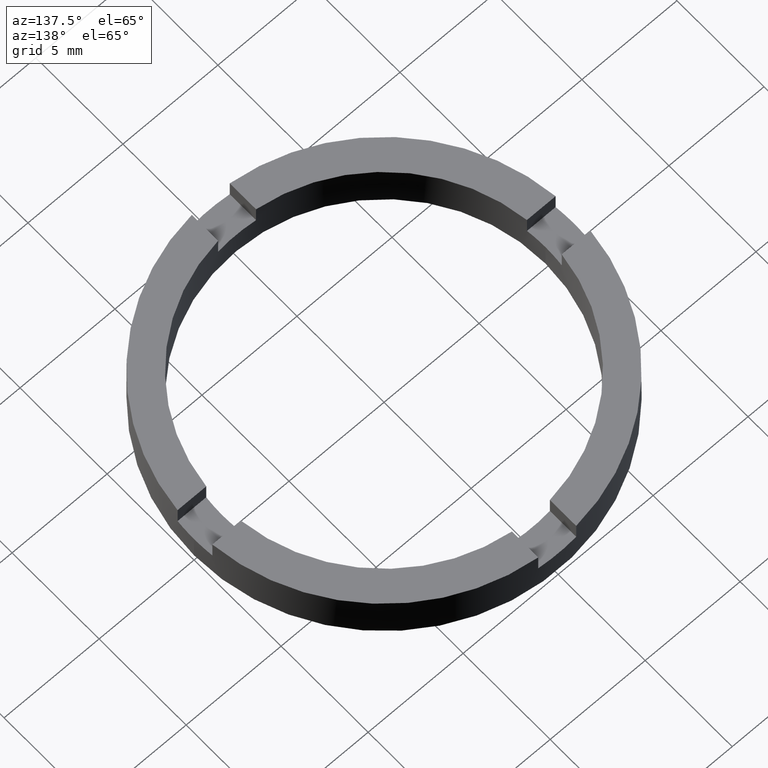
[diagram: clean part render]
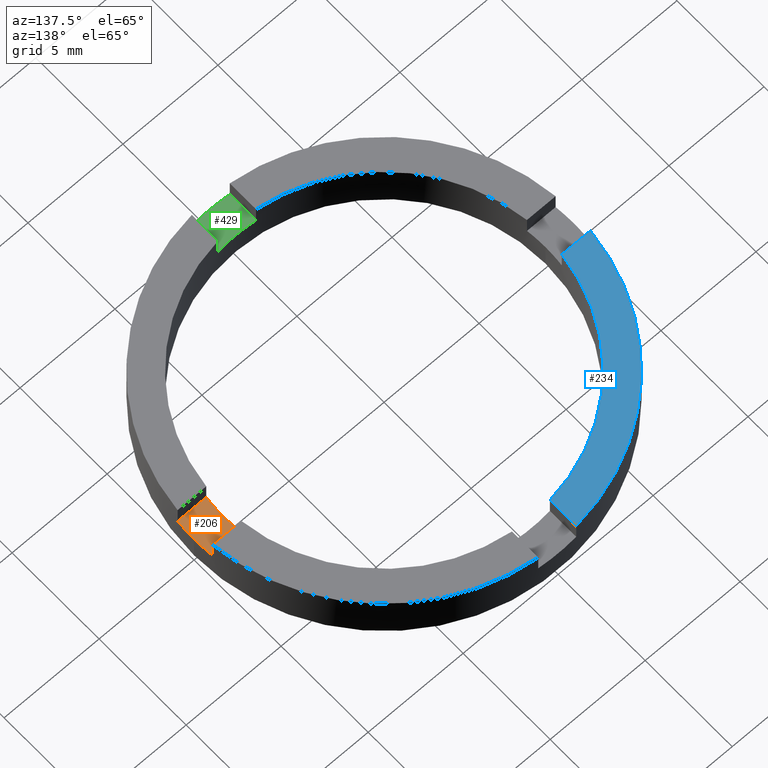
[diagram: same view with three faces highlighted in distinct colors, each labeled with its STEP entity id]
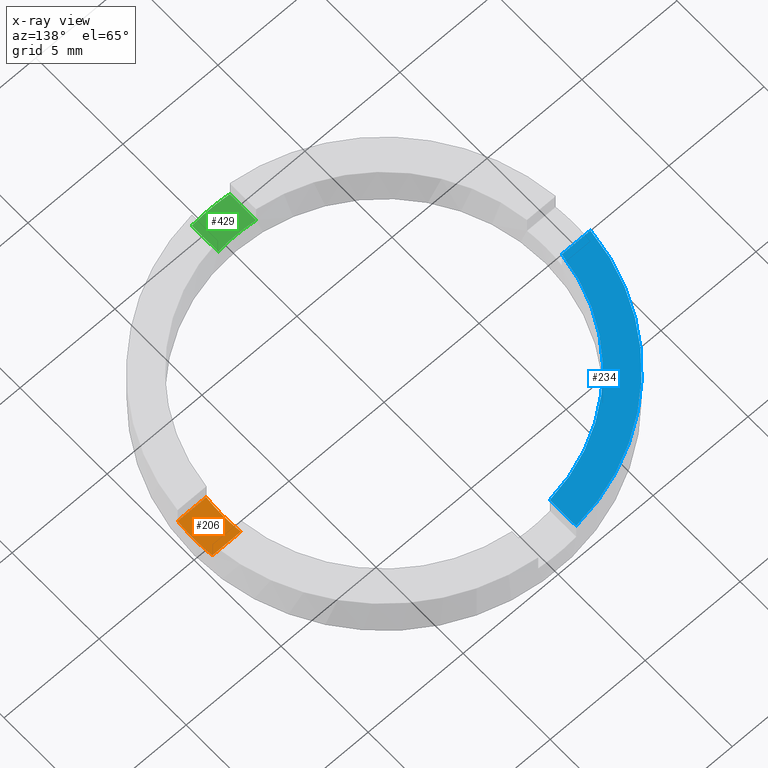
[diagram: x-ray of the same camera — body ghosted, the three highlighted faces saturated]
A machine part, auxiliary view with three faces highlighted in distinct colors.
The next image is the same camera in x-ray (body ghosted, the three faces saturated) — at least one of them is partly hidden behind the body in this view.
Their STEP definitions:

[orange] entity #206 — the highlighted planar face has unit normal (-0, 0, 1).
#17 = VERTEX_POINT ( 'NONE', #593 ) ;
#19 = ORIENTED_EDGE ( 'NONE', *, *, #385, .T. ) ;
#36 = DIRECTION ( 'NONE',  ( -0.000000000000000000, 0.000000000000000000, 1.000000000000000000 ) ) ;
#47 = DIRECTION ( 'NONE',  ( -0.000000000000000000, 0.000000000000000000, 1.000000000000000000 ) ) ;
#53 = AXIS2_PLACEMENT_3D ( 'NONE', #104, #36, #437 ) ;
#67 = CARTESIAN_POINT ( 'NONE',  ( 0.000000000000000000, 0.000000000000000000, 1.500000000000000000 ) ) ;
#79 = EDGE_CURVE ( 'NONE', #642, #17, #690, .T. ) ;
#86 = CARTESIAN_POINT ( 'NONE',  ( 10.00000000000000000, 1.224646799147353256E-15, 1.500000000000000000 ) ) ;
#100 = EDGE_CURVE ( 'NONE', #621, #387, #384, .T. ) ;
#101 = CARTESIAN_POINT ( 'NONE',  ( 8.440971508067070417, 0.9999999999999672484, 1.500000000000000000 ) ) ;
#104 = CARTESIAN_POINT ( 'NONE',  ( 0.000000000000000000, 0.000000000000000000, 1.500000000000000000 ) ) ;
#125 = CARTESIAN_POINT ( 'NONE',  ( 3.751339516799841397E-15, 0.9999999999999988898, 1.500000000000000000 ) ) ;
#127 = FACE_OUTER_BOUND ( 'NONE', #132, .T. ) ;
#132 = EDGE_LOOP ( 'NONE', ( #520, #639, #523, #265, #747, #19 ) ) ;
#168 = CIRCLE ( 'NONE', #561, 8.500000000000000000 ) ;
#206 = ADVANCED_FACE ( 'NONE', ( #127 ), #650, .T. ) ;
#227 = AXIS2_PLACEMENT_3D ( 'NONE', #67, #47, #276 ) ;
#255 = CARTESIAN_POINT ( 'NONE',  ( 8.440971508067063311, -1.000000000000032641, 1.500000000000000000 ) ) ;
#263 = VERTEX_POINT ( 'NONE', #86 ) ;
#265 = ORIENTED_EDGE ( 'NONE', *, *, #79, .T. ) ;
#267 = DIRECTION ( 'NONE',  ( 1.000000000000000000, -1.509903313490213211E-14, 0.000000000000000000 ) ) ;
#276 = DIRECTION ( 'NONE',  ( 1.000000000000000000, 0.000000000000000000, 0.000000000000000000 ) ) ;
#349 = EDGE_CURVE ( 'NONE', #742, #642, #414, .T. ) ;
#362 = DIRECTION ( 'NONE',  ( 1.000000000000000000, -3.729655473350134464E-15, 0.000000000000000000 ) ) ;
#365 = CARTESIAN_POINT ( 'NONE',  ( 9.949874371066202983, 0.9999999999999615863, 1.500000000000000000 ) ) ;
#384 = LINE ( 'NONE', #125, #673 ) ;
#385 = EDGE_CURVE ( 'NONE', #263, #387, #409, .T. ) ;
#387 = VERTEX_POINT ( 'NONE', #365 ) ;
#409 = CIRCLE ( 'NONE', #227, 10.00000000000000000 ) ;
#414 = CIRCLE ( 'NONE', #739, 8.500000000000000000 ) ;
#415 = CARTESIAN_POINT ( 'NONE',  ( 0.000000000000000000, 0.000000000000000000, 1.500000000000000000 ) ) ;
#437 = DIRECTION ( 'NONE',  ( 1.000000000000000000, 0.000000000000000000, 0.000000000000000000 ) ) ;
#448 = CIRCLE ( 'NONE', #555, 10.00000000000000000 ) ;
#484 = DIRECTION ( 'NONE',  ( 1.000000000000000000, -3.751339516799845342E-15, 0.000000000000000000 ) ) ;
#499 = DIRECTION ( 'NONE',  ( 1.000000000000000000, 0.000000000000000000, 0.000000000000000000 ) ) ;
#500 = EDGE_CURVE ( 'NONE', #621, #742, #168, .T. ) ;
#502 = DIRECTION ( 'NONE',  ( -0.000000000000000000, 0.000000000000000000, 1.000000000000000000 ) ) ;
#509 = DIRECTION ( 'NONE',  ( 1.000000000000000000, 0.000000000000000000, 0.000000000000000000 ) ) ;
#520 = ORIENTED_EDGE ( 'NONE', *, *, #100, .F. ) ;
#523 = ORIENTED_EDGE ( 'NONE', *, *, #349, .T. ) ;
#526 = DIRECTION ( 'NONE',  ( 0.000000000000000000, -0.000000000000000000, -1.000000000000000000 ) ) ;
#555 = AXIS2_PLACEMENT_3D ( 'NONE', #415, #502, #499 ) ;
#561 = AXIS2_PLACEMENT_3D ( 'NONE', #615, #766, #267 ) ;
#593 = CARTESIAN_POINT ( 'NONE',  ( 9.949874371066195877, -1.000000000000038192, 1.500000000000000000 ) ) ;
#597 = CARTESIAN_POINT ( 'NONE',  ( 8.500000000000000000, 1.040949779275250140E-15, 1.500000000000000000 ) ) ;
#615 = CARTESIAN_POINT ( 'NONE',  ( 0.000000000000000000, 0.000000000000000000, 1.500000000000000000 ) ) ;
#621 = VERTEX_POINT ( 'NONE', #101 ) ;
#639 = ORIENTED_EDGE ( 'NONE', *, *, #500, .T. ) ;
#642 = VERTEX_POINT ( 'NONE', #255 ) ;
#650 = PLANE ( 'NONE',  #53 ) ;
#652 = EDGE_CURVE ( 'NONE', #17, #263, #448, .T. ) ;
#673 = VECTOR ( 'NONE', #484, 1000.000000000000000 ) ;
#690 = LINE ( 'NONE', #727, #693 ) ;
#693 = VECTOR ( 'NONE', #362, 1000.000000000000000 ) ;
#695 = CARTESIAN_POINT ( 'NONE',  ( 0.000000000000000000, 0.000000000000000000, 1.500000000000000000 ) ) ;
#727 = CARTESIAN_POINT ( 'NONE',  ( -3.729655473350139197E-15, -1.000000000000001110, 1.500000000000000000 ) ) ;
#739 = AXIS2_PLACEMENT_3D ( 'NONE', #695, #526, #509 ) ;
#742 = VERTEX_POINT ( 'NONE', #597 ) ;
#747 = ORIENTED_EDGE ( 'NONE', *, *, #652, .T. ) ;
#766 = DIRECTION ( 'NONE',  ( 0.000000000000000000, -0.000000000000000000, -1.000000000000000000 ) ) ;

[blue] entity #234 — the highlighted planar face has unit normal (0, 0, 1).
#13 = VERTEX_POINT ( 'NONE', #334 ) ;
#25 = EDGE_LOOP ( 'NONE', ( #182, #714, #525, #529 ) ) ;
#35 = AXIS2_PLACEMENT_3D ( 'NONE', #664, #601, #311 ) ;
#38 = CARTESIAN_POINT ( 'NONE',  ( -8.440971508067063311, 1.000000000000030642, 2.500000000000000000 ) ) ;
#118 = VECTOR ( 'NONE', #324, 1000.000000000000000 ) ;
#124 = CIRCLE ( 'NONE', #441, 8.500000000000000000 ) ;
#133 = DIRECTION ( 'NONE',  ( 1.000000000000000000, 0.000000000000000000, 0.000000000000000000 ) ) ;
#155 = FACE_OUTER_BOUND ( 'NONE', #25, .T. ) ;
#180 = LINE ( 'NONE', #723, #694 ) ;
#182 = ORIENTED_EDGE ( 'NONE', *, *, #330, .F. ) ;
#191 = PLANE ( 'NONE',  #35 ) ;
#231 = CARTESIAN_POINT ( 'NONE',  ( -9.949874371066195877, 1.000000000000036193, 2.500000000000000000 ) ) ;
#234 = ADVANCED_FACE ( 'NONE', ( #155 ), #191, .T. ) ;
#268 = VERTEX_POINT ( 'NONE', #231 ) ;
#293 = EDGE_CURVE ( 'NONE', #13, #632, #396, .T. ) ;
#311 = DIRECTION ( 'NONE',  ( 1.000000000000000000, 0.000000000000000000, -0.000000000000000000 ) ) ;
#318 = CARTESIAN_POINT ( 'NONE',  ( 0.000000000000000000, 0.000000000000000000, 2.500000000000000000 ) ) ;
#324 = DIRECTION ( 'NONE',  ( 0.000000000000000000, 1.000000000000000000, -0.000000000000000000 ) ) ;
#327 = DIRECTION ( 'NONE',  ( 1.000000000000000000, -3.751339516799845342E-15, 0.000000000000000000 ) ) ;
#330 = EDGE_CURVE ( 'NONE', #13, #536, #124, .T. ) ;
#334 = CARTESIAN_POINT ( 'NONE',  ( -0.9999999999999986677, 8.440971508067066864, 2.500000000000000000 ) ) ;
#350 = CARTESIAN_POINT ( 'NONE',  ( 0.000000000000000000, 0.000000000000000000, 2.500000000000000000 ) ) ;
#353 = DIRECTION ( 'NONE',  ( 0.000000000000000000, 0.000000000000000000, 1.000000000000000000 ) ) ;
#357 = DIRECTION ( 'NONE',  ( 0.000000000000000000, 0.000000000000000000, 1.000000000000000000 ) ) ;
#376 = CARTESIAN_POINT ( 'NONE',  ( -0.9999999999999986677, 0.000000000000000000, 2.500000000000000000 ) ) ;
#396 = LINE ( 'NONE', #376, #118 ) ;
#441 = AXIS2_PLACEMENT_3D ( 'NONE', #350, #353, #444 ) ;
#444 = DIRECTION ( 'NONE',  ( 1.000000000000000000, 0.000000000000000000, 0.000000000000000000 ) ) ;
#449 = CIRCLE ( 'NONE', #582, 10.00000000000000000 ) ;
#505 = CARTESIAN_POINT ( 'NONE',  ( -0.9999999999999986677, 9.949874371066199430, 2.500000000000000000 ) ) ;
#525 = ORIENTED_EDGE ( 'NONE', *, *, #539, .T. ) ;
#529 = ORIENTED_EDGE ( 'NONE', *, *, #569, .T. ) ;
#536 = VERTEX_POINT ( 'NONE', #38 ) ;
#539 = EDGE_CURVE ( 'NONE', #632, #268, #449, .T. ) ;
#569 = EDGE_CURVE ( 'NONE', #268, #536, #180, .T. ) ;
#582 = AXIS2_PLACEMENT_3D ( 'NONE', #318, #357, #133 ) ;
#601 = DIRECTION ( 'NONE',  ( 0.000000000000000000, 0.000000000000000000, 1.000000000000000000 ) ) ;
#632 = VERTEX_POINT ( 'NONE', #505 ) ;
#664 = CARTESIAN_POINT ( 'NONE',  ( 0.000000000000000000, 0.000000000000000000, 2.500000000000000000 ) ) ;
#694 = VECTOR ( 'NONE', #327, 1000.000000000000000 ) ;
#714 = ORIENTED_EDGE ( 'NONE', *, *, #293, .T. ) ;
#723 = CARTESIAN_POINT ( 'NONE',  ( 3.751339516799841397E-15, 0.9999999999999988898, 2.500000000000000000 ) ) ;

[green] entity #429 — the highlighted planar face has unit normal (-0, 0, 1).
#3 = ORIENTED_EDGE ( 'NONE', *, *, #167, .T. ) ;
#10 = VERTEX_POINT ( 'NONE', #237 ) ;
#23 = VERTEX_POINT ( 'NONE', #503 ) ;
#57 = EDGE_CURVE ( 'NONE', #23, #10, #432, .T. ) ;
#59 = EDGE_CURVE ( 'NONE', #23, #487, #641, .T. ) ;
#126 = ORIENTED_EDGE ( 'NONE', *, *, #236, .T. ) ;
#128 = ORIENTED_EDGE ( 'NONE', *, *, #57, .T. ) ;
#130 = CIRCLE ( 'NONE', #506, 8.500000000000000000 ) ;
#135 = VERTEX_POINT ( 'NONE', #620 ) ;
#167 = EDGE_CURVE ( 'NONE', #10, #135, #420, .T. ) ;
#171 = FACE_OUTER_BOUND ( 'NONE', #245, .T. ) ;
#199 = CARTESIAN_POINT ( 'NONE',  ( 0.000000000000000000, 0.000000000000000000, 1.500000000000000000 ) ) ;
#204 = ORIENTED_EDGE ( 'NONE', *, *, #59, .F. ) ;
#222 = CARTESIAN_POINT ( 'NONE',  ( 0.000000000000000000, 0.000000000000000000, 1.500000000000000000 ) ) ;
#230 = DIRECTION ( 'NONE',  ( 1.000000000000000000, 0.000000000000000000, 0.000000000000000000 ) ) ;
#236 = EDGE_CURVE ( 'NONE', #135, #487, #130, .T. ) ;
#237 = CARTESIAN_POINT ( 'NONE',  ( 1.000000000000001332, -9.949874371066199430, 1.500000000000000000 ) ) ;
#245 = EDGE_LOOP ( 'NONE', ( #204, #128, #3, #126 ) ) ;
#325 = CARTESIAN_POINT ( 'NONE',  ( 0.000000000000000000, 0.000000000000000000, 1.500000000000000000 ) ) ;
#347 = DIRECTION ( 'NONE',  ( 1.000000000000000000, 0.000000000000000000, 0.000000000000000000 ) ) ;
#367 = AXIS2_PLACEMENT_3D ( 'NONE', #325, #578, #479 ) ;
#420 = LINE ( 'NONE', #512, #683 ) ;
#429 = ADVANCED_FACE ( 'NONE', ( #171 ), #688, .T. ) ;
#432 = CIRCLE ( 'NONE', #707, 10.00000000000000000 ) ;
#443 = DIRECTION ( 'NONE',  ( 0.000000000000000000, -0.000000000000000000, -1.000000000000000000 ) ) ;
#475 = DIRECTION ( 'NONE',  ( -0.000000000000000000, 0.000000000000000000, 1.000000000000000000 ) ) ;
#479 = DIRECTION ( 'NONE',  ( 1.000000000000000000, 0.000000000000000000, 0.000000000000000000 ) ) ;
#487 = VERTEX_POINT ( 'NONE', #571 ) ;
#503 = CARTESIAN_POINT ( 'NONE',  ( -0.9999999999999986677, -9.949874371066199430, 1.500000000000000000 ) ) ;
#506 = AXIS2_PLACEMENT_3D ( 'NONE', #199, #443, #347 ) ;
#512 = CARTESIAN_POINT ( 'NONE',  ( 1.000000000000001332, 0.000000000000000000, 1.500000000000000000 ) ) ;
#567 = DIRECTION ( 'NONE',  ( 0.000000000000000000, 1.000000000000000000, -0.000000000000000000 ) ) ;
#571 = CARTESIAN_POINT ( 'NONE',  ( -0.9999999999999986677, -8.440971508067066864, 1.500000000000000000 ) ) ;
#578 = DIRECTION ( 'NONE',  ( -0.000000000000000000, 0.000000000000000000, 1.000000000000000000 ) ) ;
#620 = CARTESIAN_POINT ( 'NONE',  ( 1.000000000000001554, -8.440971508067068640, 1.500000000000000000 ) ) ;
#641 = LINE ( 'NONE', #699, #669 ) ;
#669 = VECTOR ( 'NONE', #771, 1000.000000000000000 ) ;
#683 = VECTOR ( 'NONE', #567, 1000.000000000000000 ) ;
#688 = PLANE ( 'NONE',  #367 ) ;
#699 = CARTESIAN_POINT ( 'NONE',  ( -0.9999999999999986677, 0.000000000000000000, 1.500000000000000000 ) ) ;
#707 = AXIS2_PLACEMENT_3D ( 'NONE', #222, #475, #230 ) ;
#771 = DIRECTION ( 'NONE',  ( 0.000000000000000000, 1.000000000000000000, -0.000000000000000000 ) ) ;